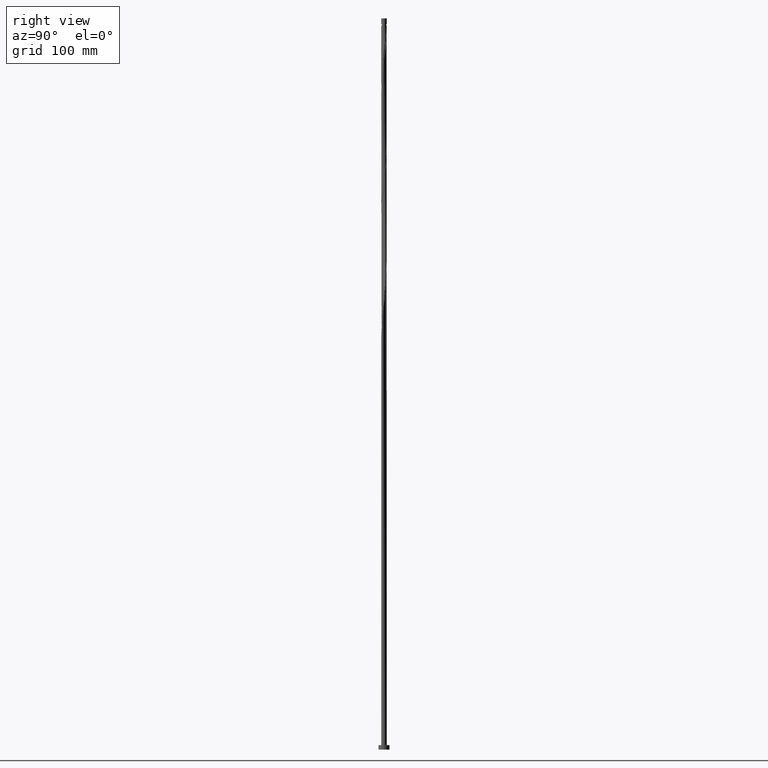
[diagram: clean part render]
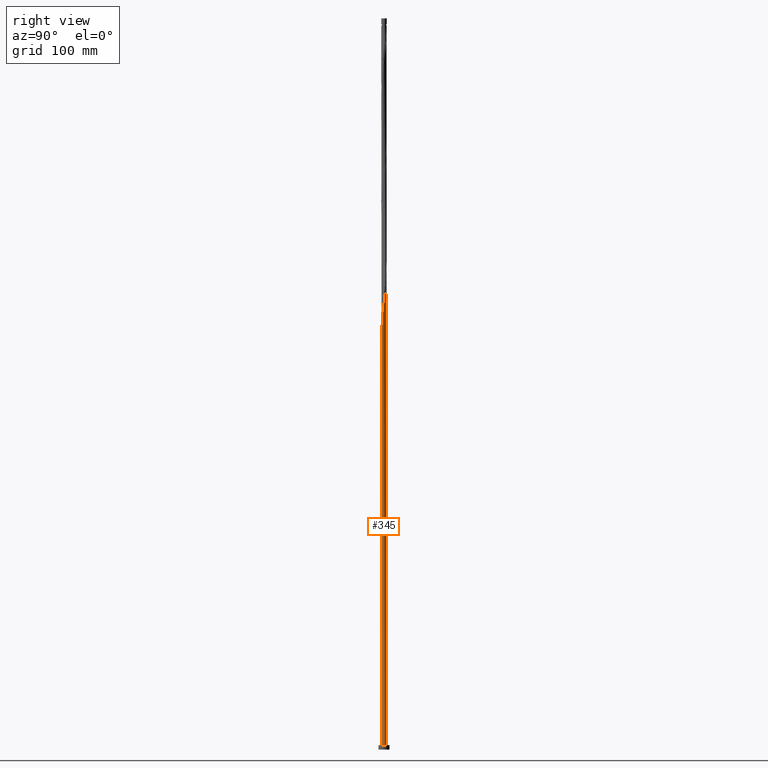
[diagram: same view with one face highlighted and labeled with its STEP entity id]
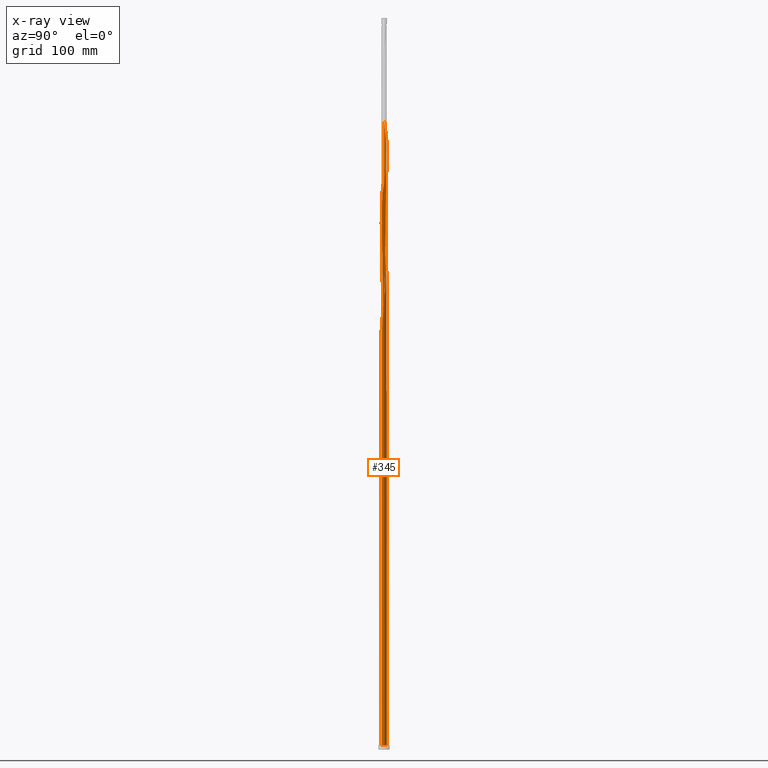
[diagram: x-ray of the same camera — body ghosted, the highlighted face saturated]
A machine part, right view. The second image highlights one B-rep face of the part: STEP entity #345.
The next image is the same camera in x-ray: the body ghosted, the highlighted face saturated — about 0% of this face is hidden behind the body in this view.
In plain terms, the highlighted cylindrical surface (bore or boss wall) has radius 3 mm, axis along (-0, -0, -1).
Its self-contained STEP definition (entity closure, byte-faithful):
#2 = CARTESIAN_POINT ( 'NONE',  ( 2.695961532796858684, -1.339248652669822848, 611.4615042186302389 ) ) ;
#14 = CARTESIAN_POINT ( 'NONE',  ( -1.519262203436358316, 2.586859554983558240, 399.1808024642443797 ) ) ;
#20 = CARTESIAN_POINT ( 'NONE',  ( 2.595725272805589956, 1.524469038097093776, 632.5141357975774099 ) ) ;
#32 = CARTESIAN_POINT ( 'NONE',  ( -0.3533771166587240664, 2.989468205788496036, 657.0755393063493557 ) ) ;
#34 = CARTESIAN_POINT ( 'NONE',  ( -3.000000000000004441, 1.134582154333421799E-15, 687.9113264038062425 ) ) ;
#45 = CARTESIAN_POINT ( 'NONE',  ( -0.1434927811088429761, -3.006859717673569410, 586.9001007098582932 ) ) ;
#68 = CARTESIAN_POINT ( 'NONE',  ( -1.758696304288136281, 2.430429449558913824, 409.7071182537179084 ) ) ;
#70 = CARTESIAN_POINT ( 'NONE',  ( 0.1049421677749414472, -2.998163961731032945, 455.3211533414372525 ) ) ;
#72 =( BOUNDED_CURVE ( )  B_SPLINE_CURVE ( 2, ( #796, #246, #777, #755, #2152, #593, #1475, #1819, #1257, #1636, #237, #1807, #68, #950, #1456, #1278, #81, #2175, #1118, #2133, #1980, #1971, #423 ),
 .UNSPECIFIED., .F., .T. ) 
 B_SPLINE_CURVE_WITH_KNOTS ( ( 3, 2, 2, 2, 2, 2, 2, 2, 2, 2, 2, 3 ),
 ( 0.9295295809515952135, 0.9342105263157894912, 0.9407894736842105088, 0.9473684210526315264, 0.9539473684210526550, 0.9605263157894736725, 0.9671052631578946901, 0.9736842105263158187, 0.9802631578947368363, 0.9868421052631578538, 0.9934210526315789824, 1.000000000000000000 ),
 .UNSPECIFIED. ) 
 CURVE ( )  GEOMETRIC_REPRESENTATION_ITEM ( )  RATIONAL_B_SPLINE_CURVE ( ( 0.9078162034606936936, 0.9068816855935004639, 0.9090909090910226364, 0.9059859027334492554, 0.9090909090910226364, 0.9059859027334492554, 0.9090909090910226364, 0.9059859027334492554, 0.9090909090910226364, 0.9059859027334492554, 0.9090909090910226364, 0.9059859027334492554, 0.9090909090910226364, 0.9059859027334492554, 0.9090909090910226364, 0.9059859027334492554, 0.9090909090910226364, 0.9059859027334492554, 0.9090909090910226364, 0.9059859027334492554, 0.9090909090910226364, 0.9059859027334492554, 0.9090909090910226364 ) ) 
 REPRESENTATION_ITEM ( '' )  );
#79 = CIRCLE ( 'NONE', #1016, 3.000000000000000444 ) ;
#81 = CARTESIAN_POINT ( 'NONE',  ( -0.8742461352996946378, 2.869789834624400182, 402.6895743940687566 ) ) ;
#83 = CARTESIAN_POINT ( 'NONE',  ( -3.000000000000003997, 4.112860309458654737E-15, 421.2446597371395001 ) ) ;
#95 = DIRECTION ( 'NONE',  ( 0.000000000000000000, 0.000000000000000000, 1.000000000000000000 ) ) ;
#112 = CARTESIAN_POINT ( 'NONE',  ( -2.811242320081163371, -1.076434929655762263, 429.0053638677530898 ) ) ;
#123 = CARTESIAN_POINT ( 'NONE',  ( 3.008439307223865544, 0.1053018269011311153, 488.6544866747705100 ) ) ;
#132 = CARTESIAN_POINT ( 'NONE',  ( 2.787793373740093283, -1.108245507697124710, 479.8825568502091414 ) ) ;
#134 = CARTESIAN_POINT ( 'NONE',  ( -2.984740227335920260, 0.3913071879240777595, 418.4790480782793338 ) ) ;
#143 = CARTESIAN_POINT ( 'NONE',  ( 2.567360290469878237, -1.551986191600444709, 476.3737849203847077 ) ) ;
#154 = CARTESIAN_POINT ( 'NONE',  ( 2.438759048142896901, -1.764723730531065016, 474.6193989554723203 ) ) ;
#164 = CARTESIAN_POINT ( 'NONE',  ( -2.880659162653936622, -0.8377367060228093631, 560.5843112361742442 ) ) ;
#177 = CARTESIAN_POINT ( 'NONE',  ( -3.000000000000003553, 0.07154200273550892497, 687.4050033853661716 ) ) ;
#185 = EDGE_CURVE ( 'NONE', #528, #1963, #1814, .T. ) ;
#192 = CARTESIAN_POINT ( 'NONE',  ( 0.6364485698655246715, 2.942231934758790413, 650.0579954467003745 ) ) ;
#205 = CARTESIAN_POINT ( 'NONE',  ( 1.960087430248509177, 2.284699718952170056, 639.5316796572267322 ) ) ;
#216 = CARTESIAN_POINT ( 'NONE',  ( 2.115033574025961371, -2.142061745314848498, 604.4439603589809167 ) ) ;
#228 = CARTESIAN_POINT ( 'NONE',  ( 1.304908909382080706, -2.712749210342452422, 597.4264164993318218 ) ) ;
#237 = CARTESIAN_POINT ( 'NONE',  ( -2.134745518443575740, 2.107809662062745115, 413.2158901835424558 ) ) ;
#246 = CARTESIAN_POINT ( 'NONE',  ( -3.000000000000000444, 0.1766959252602944008, 428.4979970245320828 ) ) ;
#248 = CARTESIAN_POINT ( 'NONE',  ( 0.3533771166587242885, -2.989468205788496036, 457.0755393063494694 ) ) ;
#256 = CARTESIAN_POINT ( 'NONE',  ( -3.000000000000004441, 4.112860309458654737E-15, 421.2446597371395001 ) ) ;
#259 = CARTESIAN_POINT ( 'NONE',  ( 0.8406078078692338362, -2.890531794211509187, 460.5843112361739031 ) ) ;
#268 = CARTESIAN_POINT ( 'NONE',  ( 0.000000000000000000, 0.000000000000000000, 392.1632586045951712 ) ) ;
#288 = CARTESIAN_POINT ( 'NONE',  ( -3.008439307223864656, -0.1053018269011328223, 555.3211533414373662 ) ) ;
#293 = DIRECTION ( 'NONE',  ( -0.000000000000000000, -0.000000000000000000, -1.000000000000000000 ) ) ;
#299 = CARTESIAN_POINT ( 'NONE',  ( -1.557305178327770712, -2.576159180165665585, 576.3737849203844235 ) ) ;
#308 = CARTESIAN_POINT ( 'NONE',  ( 2.811242320081164259, 1.076434929655760486, 495.6720305344196618 ) ) ;
#320 = CARTESIAN_POINT ( 'NONE',  ( -1.924324535758298316, 2.301515822469756056, 536.0229077274020710 ) ) ;
#330 = CARTESIAN_POINT ( 'NONE',  ( 2.979257656225287487, 0.3521701546454935605, 490.4088726396828974 ) ) ;
#343 = CARTESIAN_POINT ( 'NONE',  ( -1.334674439530821211, -2.686753457327842209, 578.1281708852968677 ) ) ;
#345 = ADVANCED_FACE ( 'NONE', ( #439 ), #619, .T. ) ;
#358 = CARTESIAN_POINT ( 'NONE',  ( -2.567360290469878237, 1.551986191600443155, 676.3737849203845371 ) ) ;
#372 = CARTESIAN_POINT ( 'NONE',  ( -0.3899706754871828940, -2.974545826216180355, 585.1457147449459626 ) ) ;
#382 = CARTESIAN_POINT ( 'NONE',  ( -1.304908909382081594, 2.712749210342452422, 664.0930831659982232 ) ) ;
#394 = CARTESIAN_POINT ( 'NONE',  ( -0.5969924622639792844, 2.940000000000003944, 658.8299252712616862 ) ) ;
#396 = LINE ( 'NONE', #1090, #1293 ) ;
#406 = CARTESIAN_POINT ( 'NONE',  ( -1.334674439530821211, -2.686753457327842209, 444.7948375519637239 ) ) ;
#415 = CARTESIAN_POINT ( 'NONE',  ( -2.950076005226710318, -0.5990384823898562416, 425.4965919379283150 ) ) ;
#423 = CARTESIAN_POINT ( 'NONE',  ( 0.5969924622639803946, 2.939999999999997726, 392.1632586045951143 ) ) ;
#425 = CARTESIAN_POINT ( 'NONE',  ( -3.000000000000000000, -3.187280130923517461E-15, 429.7485241387174142 ) ) ;
#439 = FACE_OUTER_BOUND ( 'NONE', #1306, .T. ) ;
#459 = CARTESIAN_POINT ( 'NONE',  ( -1.304908909382081594, 2.712749210342452422, 530.7597498326651930 ) ) ;
#466 = CIRCLE ( 'NONE', #1957, 3.000000000000000444 ) ;
#468 = CARTESIAN_POINT ( 'NONE',  ( 2.932182721009622739, -0.6342747753242535813, 483.3913287800336889 ) ) ;
#477 = CARTESIAN_POINT ( 'NONE',  ( 2.276896311084430469, -1.953392737922956757, 472.8650129905600465 ) ) ;
#488 = CARTESIAN_POINT ( 'NONE',  ( 2.996589767279892680, -0.1430026805114723021, 486.9001007098582363 ) ) ;
#501 = CARTESIAN_POINT ( 'NONE',  ( -2.996589767279892680, 0.1430026805114726629, 553.5667673765251493 ) ) ;
#515 = CARTESIAN_POINT ( 'NONE',  ( -2.932182721009622295, 0.6342747753242530262, 683.3913287800338594 ) ) ;
#518 = LINE ( 'NONE', #1849, #734 ) ;
#523 = CARTESIAN_POINT ( 'NONE',  ( 0.5969924622639798395, -2.940000000000003944, 592.1632586045950575 ) ) ;
#528 = VERTEX_POINT ( 'NONE', #759 ) ;
#534 = CARTESIAN_POINT ( 'NONE',  ( -2.695961532796858684, 1.339248652669821960, 411.4615042186300116 ) ) ;
#537 = CARTESIAN_POINT ( 'NONE',  ( 3.008439307223865544, 0.1053018269011311153, 621.9878200081038813 ) ) ;
#540 = ORIENTED_EDGE ( 'NONE', *, *, #851, .F. ) ;
#549 = CARTESIAN_POINT ( 'NONE',  ( 1.334674439530821433, 2.686753457327842209, 644.7948375519636102 ) ) ;
#552 = VERTEX_POINT ( 'NONE', #1438 ) ;
#561 = CARTESIAN_POINT ( 'NONE',  ( 0.1049421677749414472, -2.998163961731032945, 588.6544866747707374 ) ) ;
#593 = CARTESIAN_POINT ( 'NONE',  ( -2.811242320081158041, 1.076434929655760930, 421.9878200081039381 ) ) ;
#597 = CARTESIAN_POINT ( 'NONE',  ( -2.880659162653936622, -0.8377367060228093631, 427.2509779028407593 ) ) ;
#606 = CARTESIAN_POINT ( 'NONE',  ( -0.1434927811088429761, -3.006859717673569410, 453.5667673765248651 ) ) ;
#619 = CYLINDRICAL_SURFACE ( 'NONE', #866, 3.000000000000000444 ) ;
#628 = CARTESIAN_POINT ( 'NONE',  ( -2.811242320081163371, -1.076434929655762263, 562.3386972010864611 ) ) ;
#640 = CARTESIAN_POINT ( 'NONE',  ( -0.8406078078692347244, 2.890531794211509187, 527.2509779028406456 ) ) ;
#655 = CARTESIAN_POINT ( 'NONE',  ( -2.595725272805589068, -1.524469038097094220, 565.8474691309108948 ) ) ;
#667 = CARTESIAN_POINT ( 'NONE',  ( -0.1049421677749396986, 2.998163961731032945, 521.9878200081038813 ) ) ;
#680 = CARTESIAN_POINT ( 'NONE',  ( -1.072758358625658381, 2.801640502276981248, 529.0053638677529761 ) ) ;
#691 = CARTESIAN_POINT ( 'NONE',  ( 0.3533771166587242885, -2.989468205788496036, 590.4088726396826132 ) ) ;
#703 = CARTESIAN_POINT ( 'NONE',  ( -1.733615497490634594, 2.460969899624664059, 400.9351884291566535 ) ) ;
#706 = CARTESIAN_POINT ( 'NONE',  ( -0.8406078078692347244, 2.890531794211509187, 660.5843112361739031 ) ) ;
#715 = CARTESIAN_POINT ( 'NONE',  ( -2.438759048142897345, 1.764723730531063906, 407.9527322888055210 ) ) ;
#719 = CARTESIAN_POINT ( 'NONE',  ( -2.879625214683326107, 0.8772423627244274602, 681.6369428151213015 ) ) ;
#730 = CARTESIAN_POINT ( 'NONE',  ( 1.112043700733870155, 2.797347734490019278, 646.5492235168758270 ) ) ;
#734 = VECTOR ( 'NONE', #293, 1000.000000000000000 ) ;
#742 = CARTESIAN_POINT ( 'NONE',  ( 2.984740227335920260, -0.3913071879240780926, 618.4790480782791064 ) ) ;
#755 = CARTESIAN_POINT ( 'NONE',  ( -2.950076005226704989, 0.5990384823898561306, 425.4965919379284287 ) ) ;
#759 = CARTESIAN_POINT ( 'NONE',  ( -0.5969924622639793954, 2.940000000000003944, 392.1632586045951143 ) ) ;
#772 = AXIS2_PLACEMENT_3D ( 'NONE', #2166, #95, #1280 ) ;
#777 = CARTESIAN_POINT ( 'NONE',  ( -2.979257656225282602, 0.3521701546454948928, 427.2509779028406456 ) ) ;
#789 = CARTESIAN_POINT ( 'NONE',  ( -2.595725272805589068, -1.524469038097094220, 432.5141357975775236 ) ) ;
#796 = CARTESIAN_POINT ( 'NONE',  ( -3.000000000000000000, -3.187280130923517461E-15, 429.7485241387174142 ) ) ;
#808 = CARTESIAN_POINT ( 'NONE',  ( -2.309403606638651407, -1.930919605173326170, 436.0229077274020710 ) ) ;
#818 = CARTESIAN_POINT ( 'NONE',  ( -1.758696304288140499, -2.430429449558918265, 574.6193989554723203 ) ) ;
#829 = CARTESIAN_POINT ( 'NONE',  ( 1.960087430248509177, 2.284699718952170056, 506.1983463238933609 ) ) ;
#836 = CIRCLE ( 'NONE', #772, 3.000000000000000444 ) ;
#838 = CARTESIAN_POINT ( 'NONE',  ( 0.3899706754871832826, 2.974545826216180355, 518.4790480782792201 ) ) ;
#850 = CARTESIAN_POINT ( 'NONE',  ( 1.519262203436358316, -2.586859554983558240, 465.8474691309108948 ) ) ;
#851 = EDGE_CURVE ( 'NONE', #1538, #1718, #518, .T. ) ;
#855 = VERTEX_POINT ( 'NONE', #987 ) ;
#862 = CARTESIAN_POINT ( 'NONE',  ( -0.5969924622639792844, 2.940000000000003944, 525.4965919379285424 ) ) ;
#866 = AXIS2_PLACEMENT_3D ( 'NONE', #1143, #1304, #2005 ) ;
#874 = CARTESIAN_POINT ( 'NONE',  ( -1.304908909382081594, 2.712749210342452422, 397.4264164993319355 ) ) ;
#877 = CARTESIAN_POINT ( 'NONE',  ( 2.309403606638652295, 1.930919605173324838, 636.0229077274019573 ) ) ;
#887 = CARTESIAN_POINT ( 'NONE',  ( 1.758696304288141610, 2.430429449558916488, 641.2860656221389490 ) ) ;
#901 = CARTESIAN_POINT ( 'NONE',  ( 0.3899706754871832826, 2.974545826216180355, 651.8123814116127051 ) ) ;
#904 = ORIENTED_EDGE ( 'NONE', *, *, #961, .F. ) ;
#912 = CARTESIAN_POINT ( 'NONE',  ( 2.567360290469878237, -1.551986191600444709, 609.7071182537180221 ) ) ;
#923 = DIRECTION ( 'NONE',  ( 0.000000000000000000, 0.000000000000000000, 1.000000000000000000 ) ) ;
#944 = CARTESIAN_POINT ( 'NONE',  ( 0.5969924622639798395, -2.940000000000003944, 458.8299252712619136 ) ) ;
#950 = CARTESIAN_POINT ( 'NONE',  ( -1.557305178327768047, 2.576159180165662033, 407.9527322888055778 ) ) ;
#952 = CARTESIAN_POINT ( 'NONE',  ( 1.072758358625657937, -2.801640502276981248, 462.3386972010864042 ) ) ;
#961 = EDGE_CURVE ( 'NONE', #1963, #1405, #396, .T. ) ;
#966 = CARTESIAN_POINT ( 'NONE',  ( -2.996589767279892680, 0.1430026805114726629, 420.2334340431915507 ) ) ;
#977 = ORIENTED_EDGE ( 'NONE', *, *, #1786, .T. ) ;
#984 = CARTESIAN_POINT ( 'NONE',  ( 2.879625214683325662, -0.8772423627244294586, 481.6369428151213583 ) ) ;
#987 = CARTESIAN_POINT ( 'NONE',  ( 0.5969924622639803946, 2.939999999999997726, 392.1632586045951143 ) ) ;
#995 = CARTESIAN_POINT ( 'NONE',  ( -2.879625214683326107, 0.8772423627244274602, 548.3036094817879302 ) ) ;
#999 = CARTESIAN_POINT ( 'NONE',  ( -3.000000000000003997, 4.112860309458654737E-15, 421.2446597371395001 ) ) ;
#1007 = CARTESIAN_POINT ( 'NONE',  ( 1.758696304288141610, 2.430429449558916488, 507.9527322888057483 ) ) ;
#1016 = AXIS2_PLACEMENT_3D ( 'NONE', #1081, #923, #2099 ) ;
#1019 = CARTESIAN_POINT ( 'NONE',  ( -2.276896311084430025, 1.953392737922956313, 539.5316796572267322 ) ) ;
#1030 = CARTESIAN_POINT ( 'NONE',  ( 0.8742461352996989676, 2.869789834624405511, 514.9702761484546727 ) ) ;
#1035 = ORIENTED_EDGE ( 'NONE', *, *, #1883, .F. ) ;
#1042 = CARTESIAN_POINT ( 'NONE',  ( 2.950076005226710318, 0.5990384823898557975, 625.4965919379284287 ) ) ;
#1045 = DIRECTION ( 'NONE',  ( -0.000000000000000000, -0.000000000000000000, -1.000000000000000000 ) ) ;
#1046 = ORIENTED_EDGE ( 'NONE', *, *, #961, .T. ) ;
#1053 = CARTESIAN_POINT ( 'NONE',  ( -0.8742461352996971913, -2.869789834624405955, 581.6369428151216425 ) ) ;
#1060 = ORIENTED_EDGE ( 'NONE', *, *, #1860, .F. ) ;
#1068 = CARTESIAN_POINT ( 'NONE',  ( 1.733615497490634594, -2.460969899624664059, 600.9351884291563692 ) ) ;
#1079 = CARTESIAN_POINT ( 'NONE',  ( -1.519262203436358316, 2.586859554983558240, 665.8474691309107811 ) ) ;
#1081 = CARTESIAN_POINT ( 'NONE',  ( 0.000000000000000000, 0.000000000000000000, 5.000000000000000000 ) ) ;
#1088 = CARTESIAN_POINT ( 'NONE',  ( -1.733615497490634594, 2.460969899624664059, 667.6018550958232254 ) ) ;
#1090 = CARTESIAN_POINT ( 'NONE',  ( -3.000000000000000444, 0.000000000000000000, 800.0000000000000000 ) ) ;
#1104 = CARTESIAN_POINT ( 'NONE',  ( -1.924324535758298316, 2.301515822469756056, 402.6895743940688135 ) ) ;
#1111 = CARTESIAN_POINT ( 'NONE',  ( -2.979257656225287487, -0.3521701546454946152, 423.7422059730163255 ) ) ;
#1113 = CARTESIAN_POINT ( 'NONE',  ( -0.8406078078692347244, 2.890531794211509187, 393.9176445695073312 ) ) ;
#1118 = CARTESIAN_POINT ( 'NONE',  ( -0.3899706754871813952, 2.974545826216175470, 399.1808024642442092 ) ) ;
#1120 = CARTESIAN_POINT ( 'NONE',  ( -0.8742461352996971913, -2.869789834624405955, 448.3036094817882713 ) ) ;
#1139 = CARTESIAN_POINT ( 'NONE',  ( -2.703483796443376441, -1.300451983876428352, 430.7597498326654204 ) ) ;
#1143 = CARTESIAN_POINT ( 'NONE',  ( 0.000000000000000000, 0.000000000000000000, 800.0000000000000000 ) ) ;
#1145 = ORIENTED_EDGE ( 'NONE', *, *, #1212, .T. ) ;
#1151 = CARTESIAN_POINT ( 'NONE',  ( -1.960087430248508733, -2.284699718952170056, 572.8650129905598760 ) ) ;
#1161 = CARTESIAN_POINT ( 'NONE',  ( -2.787793373740093283, 1.108245507697124710, 546.5492235168758270 ) ) ;
#1165 = ORIENTED_EDGE ( 'NONE', *, *, #1596, .T. ) ;
#1170 = CARTESIAN_POINT ( 'NONE',  ( 2.695961532796858684, -1.339248652669822848, 478.1281708852969246 ) ) ;
#1178 = CARTESIAN_POINT ( 'NONE',  ( 2.452564439722120682, 1.727694321635210528, 500.9351884291565398 ) ) ;
#1188 = CARTESIAN_POINT ( 'NONE',  ( 2.880659162653936622, 0.8377367060228096962, 493.9176445695074449 ) ) ;
#1199 = CARTESIAN_POINT ( 'NONE',  ( 2.879625214683325662, -0.8772423627244294586, 614.9702761484545590 ) ) ;
#1211 = CARTESIAN_POINT ( 'NONE',  ( 2.276896311084430469, -1.953392737922956757, 606.1983463238934746 ) ) ;
#1212 = EDGE_CURVE ( 'NONE', #552, #1405, #79, .T. ) ;
#1221 = CARTESIAN_POINT ( 'NONE',  ( 2.811242320081164259, 1.076434929655760486, 629.0053638677530898 ) ) ;
#1234 = CARTESIAN_POINT ( 'NONE',  ( 0.8406078078692338362, -2.890531794211509187, 593.9176445695073880 ) ) ;
#1245 = CARTESIAN_POINT ( 'NONE',  ( 2.134745518443581069, 2.107809662062747336, 637.7772936923142879 ) ) ;
#1257 = CARTESIAN_POINT ( 'NONE',  ( -2.452564439722115797, 1.727694321635207864, 416.7246621133669464 ) ) ;
#1259 = CARTESIAN_POINT ( 'NONE',  ( -1.758696304288140499, -2.430429449558918265, 441.2860656221390627 ) ) ;
#1269 = DIRECTION ( 'NONE',  ( -1.000000000000000000, 0.000000000000000000, 0.000000000000000000 ) ) ;
#1278 = CARTESIAN_POINT ( 'NONE',  ( -1.112043700733867935, 2.797347734490014837, 404.4439603589810872 ) ) ;
#1280 = DIRECTION ( 'NONE',  ( 1.000000000000000000, 0.000000000000000000, 0.000000000000000000 ) ) ;
#1283 = CARTESIAN_POINT ( 'NONE',  ( -2.879625214683326107, 0.8772423627244274602, 414.9702761484547864 ) ) ;
#1293 = VECTOR ( 'NONE', #1045, 1000.000000000000000 ) ;
#1304 = DIRECTION ( 'NONE',  ( -0.000000000000000000, -0.000000000000000000, -1.000000000000000000 ) ) ;
#1306 = EDGE_LOOP ( 'NONE', ( #540, #1060, #1046, #977, #1145, #904, #1415, #1165, #1035 ) ) ;
#1315 = CARTESIAN_POINT ( 'NONE',  ( -2.703483796443376441, -1.300451983876428352, 564.0930831659986779 ) ) ;
#1323 = CARTESIAN_POINT ( 'NONE',  ( 0.6364485698655246715, 2.942231934758790413, 516.7246621133670033 ) ) ;
#1335 = CARTESIAN_POINT ( 'NONE',  ( -2.115033574025961371, 2.142061745314848054, 537.7772936923142879 ) ) ;
#1347 = CARTESIAN_POINT ( 'NONE',  ( 2.309403606638652295, 1.930919605173324838, 502.6895743940688135 ) ) ;
#1360 = CARTESIAN_POINT ( 'NONE',  ( -2.438759048142897345, 1.764723730531063906, 541.2860656221388354 ) ) ;
#1372 = CARTESIAN_POINT ( 'NONE',  ( -2.787793373740093283, 1.108245507697124710, 679.8825568502091983 ) ) ;
#1387 = CARTESIAN_POINT ( 'NONE',  ( 2.452564439722120682, 1.727694321635210528, 634.2685217624900815 ) ) ;
#1396 = CARTESIAN_POINT ( 'NONE',  ( -2.567360290469878237, 1.551986191600443155, 409.7071182537179084 ) ) ;
#1398 =( BOUNDED_CURVE ( )  B_SPLINE_CURVE ( 2, ( #83, #2154, #1111, #415, #597, #112, #1139, #789, #1832, #808, #1487, #1982, #1259, #1962, #406, #1468, #1120, #1796, #1809, #606, #70, #248, #944, #259, #952, #1638, #850, #2196, #1534, #1845, #477, #154, #143, #1170, #132, #984, #468, #1865, #488, #123, #330, #1496, #1188, #308, #1508, #2227, #1178, #1347, #1885, #829, #1007, #2035, #2217, #1691, #1030, #1323, #838, #1523, #667, #2045, #862, #640, #680, #459, #2023, #1875, #320, #1335, #1019, #1360, #2206, #1670, #1161, #995, #2058, #1702, #501, #288, #1713, #2187, #164, #628, #1315, #655, #1682, #2014, #1855, #1151, #818, #299, #343, #1761, #1053, #1575, #372, #45, #561, #691, #523, #1234, #1412, #228, #1564, #1068, #1925, #216, #1211, #2122, #912, #2, #1595, #1199, #2096, #742, #1750, #537, #1737, #1042, #2085, #1221, #2109, #20, #1387, #877, #1245, #205, #887, #1423, #549, #730, #1947, #192, #901, #1400, #1585, #32, #394, #706, #1936, #382, #1079, #1088, #1772, #1913, #1548, #2072, #358, #2237, #1372, #719, #515, #1899, #1723, #177, #1446 ),
 .UNSPECIFIED., .F., .T. ) 
 B_SPLINE_CURVE_WITH_KNOTS ( ( 3, 2, 2, 2, 2, 2, 2, 2, 2, 2, 2, 2, 2, 2, 2, 2, 2, 2, 2, 2, 2, 2, 2, 2, 2, 2, 2, 2, 2, 2, 2, 2, 2, 2, 2, 2, 2, 2, 2, 2, 2, 2, 2, 2, 2, 2, 2, 2, 2, 2, 2, 2, 2, 2, 2, 2, 2, 2, 2, 2, 2, 2, 2, 2, 2, 2, 2, 2, 2, 2, 2, 2, 2, 2, 2, 2, 2, 3 ),
 ( 0.05452958095159539387, 0.05921052631578949121, 0.06578947368421050879, 0.07236842105263152636, 0.07894736842105265495, 0.08552631578947367252, 0.09210526315789469010, 0.09868421052631581869, 0.1052631578947368363, 0.1118421052631578538, 0.1184210526315789824, 0.1250000000000000000, 0.1315789473684210176, 0.1381578947368421462, 0.1447368421052631637, 0.1513157894736841813, 0.1578947368421053099, 0.1644736842105263275, 0.1710526315789473450, 0.1776315789473684736, 0.1842105263157894912, 0.1907894736842105088, 0.1973684210526315264, 0.2039473684210526550, 0.2105263157894736725, 0.2171052631578946901, 0.2236842105263158187, 0.2302631578947368363, 0.2368421052631578538, 0.2434210526315789824, 0.2500000000000000000, 0.2565789473684210176, 0.2631578947368421462, 0.2697368421052631637, 0.2763157894736841813, 0.2828947368421053099, 0.2894736842105263275, 0.2960526315789473450, 0.3026315789473684736, 0.3092105263157894912, 0.3157894736842105088, 0.3223684210526315264, 0.3289473684210526550, 0.3355263157894736725, 0.3421052631578946901, 0.3486842105263158187, 0.3552631578947368363, 0.3618421052631578538, 0.3684210526315789824, 0.3750000000000000000, 0.3815789473684210176, 0.3881578947368421462, 0.3947368421052631637, 0.4013157894736841813, 0.4078947368421053099, 0.4144736842105263275, 0.4210526315789473450, 0.4276315789473684736, 0.4342105263157894912, 0.4407894736842105088, 0.4473684210526315264, 0.4539473684210526550, 0.4605263157894736725, 0.4671052631578946901, 0.4736842105263158187, 0.4802631578947368363, 0.4868421052631578538, 0.4934210526315789824, 0.5000000000000000000, 0.5065789473684210176, 0.5131578947368420351, 0.5197368421052631637, 0.5263157894736842923, 0.5328947368421053099, 0.5394736842105263275, 0.5460526315789473450, 0.5526315789473683626, 0.5545295809515952135 ),
 .UNSPECIFIED. ) 
 CURVE ( )  GEOMETRIC_REPRESENTATION_ITEM ( )  RATIONAL_B_SPLINE_CURVE ( ( 0.9078162034607002440, 0.9068816855935071253, 0.9090909090910290757, 0.9059859027334558057, 0.9090909090910290757, 0.9059859027334558057, 0.9090909090910290757, 0.9059859027334558057, 0.9090909090910290757, 0.9059859027334558057, 0.9090909090910290757, 0.9059859027334558057, 0.9090909090910290757, 0.9059859027334558057, 0.9090909090910290757, 0.9059859027334558057, 0.9090909090910290757, 0.9059859027334558057, 0.9090909090910290757, 0.9059859027334558057, 0.9090909090910290757, 0.9059859027334558057, 0.9090909090910290757, 0.9059859027334558057, 0.9090909090910290757, 0.9059859027334558057, 0.9090909090910290757, 0.9059859027334558057, 0.9090909090910290757, 0.9059859027334558057, 0.9090909090910290757, 0.9059859027334558057, 0.9090909090910290757, 0.9059859027334558057, 0.9090909090910290757, 0.9059859027334558057, 0.9090909090910290757, 0.9059859027334558057, 0.9090909090910290757, 0.9059859027334558057, 0.9090909090910290757, 0.9059859027334558057, 0.9090909090910290757, 0.9059859027334558057, 0.9090909090910290757, 0.9059859027334558057, 0.9090909090910290757, 0.9059859027334558057, 0.9090909090910290757, 0.9059859027334558057, 0.9090909090910290757, 0.9059859027334558057, 0.9090909090910290757, 0.9059859027334558057, 0.9090909090910290757, 0.9059859027334558057, 0.9090909090910290757, 0.9059859027334558057, 0.9090909090910290757, 0.9059859027334558057, 0.9090909090910290757, 0.9059859027334558057, 0.9090909090910290757, 0.9059859027334558057, 0.9090909090910290757, 0.9059859027334558057, 0.9090909090910290757, 0.9059859027334558057, 0.9090909090910290757, 0.9059859027334558057, 0.9090909090910290757, 0.9059859027334558057, 0.9090909090910290757, 0.9059859027334558057, 0.9090909090910290757, 0.9059859027334558057, 0.9090909090910290757, 0.9059859027334558057, 0.9090909090910290757, 0.9059859027334558057, 0.9090909090910290757, 0.9059859027334558057, 0.9090909090910290757, 0.9059859027334558057, 0.9090909090910290757, 0.9059859027334558057, 0.9090909090910290757, 0.9059859027334558057, 0.9090909090910290757, 0.9059859027334558057, 0.9090909090910290757, 0.9059859027334558057, 0.9090909090910290757, 0.9059859027334558057, 0.9090909090910290757, 0.9059859027334558057, 0.9090909090910290757, 0.9059859027334558057, 0.9090909090910290757, 0.9059859027334558057, 0.9090909090910290757, 0.9059859027334558057, 0.9090909090910290757, 0.9059859027334558057, 0.9090909090910290757, 0.9059859027334558057, 0.9090909090910290757, 0.9059859027334558057, 0.9090909090910290757, 0.9059859027334558057, 0.9090909090910290757, 0.9059859027334558057, 0.9090909090910290757, 0.9059859027334558057, 0.9090909090910290757, 0.9059859027334558057, 0.9090909090910290757, 0.9059859027334558057, 0.9090909090910290757, 0.9059859027334558057, 0.9090909090910290757, 0.9059859027334558057, 0.9090909090910290757, 0.9059859027334558057, 0.9090909090910290757, 0.9059859027334558057, 0.9090909090910290757, 0.9059859027334558057, 0.9090909090910290757, 0.9059859027334558057, 0.9090909090910290757, 0.9059859027334558057, 0.9090909090910290757, 0.9059859027334558057, 0.9090909090910290757, 0.9059859027334558057, 0.9090909090910290757, 0.9059859027334558057, 0.9090909090910290757, 0.9059859027334558057, 0.9090909090910290757, 0.9059859027334558057, 0.9090909090910290757, 0.9059859027334558057, 0.9090909090910290757, 0.9059859027334558057, 0.9090909090910290757, 0.9059859027334558057, 0.9090909090910290757, 0.9059859027334558057, 0.9090909090910290757, 0.9059859027334558057, 0.9090909090910290757, 0.9081951262309777562, 0.9078162034607002440 ) ) 
 REPRESENTATION_ITEM ( '' )  );
#1400 = CARTESIAN_POINT ( 'NONE',  ( 0.1434927811088420047, 3.006859717673569410, 653.5667673765248082 ) ) ;
#1405 = VERTEX_POINT ( 'NONE', #1916 ) ;
#1412 = CARTESIAN_POINT ( 'NONE',  ( 1.072758358625657937, -2.801640502276981248, 595.6720305344198323 ) ) ;
#1415 = ORIENTED_EDGE ( 'NONE', *, *, #185, .F. ) ;
#1423 = CARTESIAN_POINT ( 'NONE',  ( 1.557305178327772266, 2.576159180165665141, 643.0404515870512796 ) ) ;
#1438 = CARTESIAN_POINT ( 'NONE',  ( 3.000000000000000444, 0.000000000000000000, 5.000000000000000000 ) ) ;
#1446 = CARTESIAN_POINT ( 'NONE',  ( -3.000000000000003997, 1.134582154333421799E-15, 687.9113264038062425 ) ) ;
#1456 = CARTESIAN_POINT ( 'NONE',  ( -1.334674439530817658, 2.686753457327838213, 406.1983463238933041 ) ) ;
#1468 = CARTESIAN_POINT ( 'NONE',  ( -1.112043700733870155, -2.797347734490019278, 446.5492235168757702 ) ) ;
#1475 = CARTESIAN_POINT ( 'NONE',  ( -2.703483796443370668, 1.300451983876426576, 420.2334340431915507 ) ) ;
#1487 = CARTESIAN_POINT ( 'NONE',  ( -2.134745518443580181, -2.107809662062748224, 437.7772936923145153 ) ) ;
#1496 = CARTESIAN_POINT ( 'NONE',  ( 2.950076005226710318, 0.5990384823898557975, 492.1632586045951712 ) ) ;
#1508 = CARTESIAN_POINT ( 'NONE',  ( 2.703483796443377329, 1.300451983876427464, 497.4264164993319923 ) ) ;
#1523 = CARTESIAN_POINT ( 'NONE',  ( 0.1434927811088420047, 3.006859717673569410, 520.2334340431915507 ) ) ;
#1534 = CARTESIAN_POINT ( 'NONE',  ( 1.924324535758298316, -2.301515822469756056, 469.3562410607354423 ) ) ;
#1538 = VERTEX_POINT ( 'NONE', #34 ) ;
#1548 = CARTESIAN_POINT ( 'NONE',  ( -2.276896311084430025, 1.953392737922956313, 672.8650129905599897 ) ) ;
#1564 = CARTESIAN_POINT ( 'NONE',  ( 1.519262203436358316, -2.586859554983558240, 599.1808024642442660 ) ) ;
#1575 = CARTESIAN_POINT ( 'NONE',  ( -0.6364485698655244494, -2.942231934758790413, 583.3913287800337457 ) ) ;
#1585 = CARTESIAN_POINT ( 'NONE',  ( -0.1049421677749396986, 2.998163961731032945, 655.3211533414373662 ) ) ;
#1595 = CARTESIAN_POINT ( 'NONE',  ( 2.787793373740093283, -1.108245507697124710, 613.2158901835423421 ) ) ;
#1596 = EDGE_CURVE ( 'NONE', #528, #855, #466, .T. ) ;
#1636 = CARTESIAN_POINT ( 'NONE',  ( -2.309403606638647855, 1.930919605173323506, 414.9702761484547864 ) ) ;
#1638 = CARTESIAN_POINT ( 'NONE',  ( 1.304908909382080706, -2.712749210342452422, 464.0930831659985643 ) ) ;
#1662 = CARTESIAN_POINT ( 'NONE',  ( -3.000000000000003553, 0.07154200273550508082, 420.7383367186994292 ) ) ;
#1670 = CARTESIAN_POINT ( 'NONE',  ( -2.695961532796858684, 1.339248652669821960, 544.7948375519634965 ) ) ;
#1682 = CARTESIAN_POINT ( 'NONE',  ( -2.452564439722121570, -1.727694321635209640, 567.6018550958233391 ) ) ;
#1691 = CARTESIAN_POINT ( 'NONE',  ( 1.112043700733870155, 2.797347734490019278, 513.2158901835425695 ) ) ;
#1702 = CARTESIAN_POINT ( 'NONE',  ( -2.984740227335920260, 0.3913071879240777595, 551.8123814116128187 ) ) ;
#1713 = CARTESIAN_POINT ( 'NONE',  ( -2.979257656225287487, -0.3521701546454946152, 557.0755393063495831 ) ) ;
#1718 = VERTEX_POINT ( 'NONE', #425 ) ;
#1723 = CARTESIAN_POINT ( 'NONE',  ( -2.996589767279892680, 0.1430026805114726629, 686.9001007098582932 ) ) ;
#1737 = CARTESIAN_POINT ( 'NONE',  ( 2.979257656225287487, 0.3521701546454935605, 623.7422059730160981 ) ) ;
#1750 = CARTESIAN_POINT ( 'NONE',  ( 2.996589767279892680, -0.1430026805114723021, 620.2334340431916644 ) ) ;
#1761 = CARTESIAN_POINT ( 'NONE',  ( -1.112043700733870155, -2.797347734490019278, 579.8825568502093120 ) ) ;
#1772 = CARTESIAN_POINT ( 'NONE',  ( -1.924324535758298316, 2.301515822469756056, 669.3562410607355559 ) ) ;
#1785 = DIRECTION ( 'NONE',  ( 0.000000000000000000, -0.000000000000000000, -1.000000000000000000 ) ) ;
#1786 = EDGE_CURVE ( 'NONE', #1405, #552, #836, .T. ) ;
#1796 = CARTESIAN_POINT ( 'NONE',  ( -0.6364485698655244494, -2.942231934758790413, 450.0579954467003176 ) ) ;
#1807 = CARTESIAN_POINT ( 'NONE',  ( -1.960087430248504958, 2.284699718952166947, 411.4615042186301821 ) ) ;
#1809 = CARTESIAN_POINT ( 'NONE',  ( -0.3899706754871828940, -2.974545826216180355, 451.8123814116127619 ) ) ;
#1814 =( BOUNDED_CURVE ( )  B_SPLINE_CURVE ( 2, ( #2105, #1113, #1896, #874, #14, #703, #1104, #2082, #1907, #715, #1396, #534, #1921, #1283, #2157, #134, #966, #1662, #999 ),
 .UNSPECIFIED., .F., .T. ) 
 B_SPLINE_CURVE_WITH_KNOTS ( ( 3, 2, 2, 2, 2, 2, 2, 2, 2, 3 ),
 ( 0.000000000000000000, 0.006578947368421017572, 0.01315789473684214443, 0.01973684210526316374, 0.02631578947368418478, 0.03289473684210530990, 0.03947368421052632748, 0.04605263157894734505, 0.05263157894736848058, 0.05452958095159539387 ),
 .UNSPECIFIED. ) 
 CURVE ( )  GEOMETRIC_REPRESENTATION_ITEM ( )  RATIONAL_B_SPLINE_CURVE ( ( 0.9090909090910290757, 0.9059859027334558057, 0.9090909090910290757, 0.9059859027334558057, 0.9090909090910290757, 0.9059859027334558057, 0.9090909090910290757, 0.9059859027334558057, 0.9090909090910290757, 0.9059859027334558057, 0.9090909090910290757, 0.9059859027334558057, 0.9090909090910290757, 0.9059859027334558057, 0.9090909090910290757, 0.9059859027334558057, 0.9090909090910290757, 0.9081951262309777562, 0.9078162034607002440 ) ) 
 REPRESENTATION_ITEM ( '' )  );
#1819 = CARTESIAN_POINT ( 'NONE',  ( -2.595725272805583739, 1.524469038097092666, 418.4790480782792201 ) ) ;
#1832 = CARTESIAN_POINT ( 'NONE',  ( -2.452564439722121570, -1.727694321635209640, 434.2685217624898542 ) ) ;
#1845 = CARTESIAN_POINT ( 'NONE',  ( 2.115033574025961371, -2.142061745314848498, 471.1106270256477728 ) ) ;
#1849 = CARTESIAN_POINT ( 'NONE',  ( -3.000000000000000444, 0.000000000000000000, 800.0000000000000000 ) ) ;
#1855 = CARTESIAN_POINT ( 'NONE',  ( -2.134745518443580181, -2.107809662062748224, 571.1106270256476591 ) ) ;
#1860 = EDGE_CURVE ( 'NONE', #1963, #1538, #1398, .T. ) ;
#1865 = CARTESIAN_POINT ( 'NONE',  ( 2.984740227335920260, -0.3913071879240780926, 485.1457147449460763 ) ) ;
#1875 = CARTESIAN_POINT ( 'NONE',  ( -1.733615497490634594, 2.460969899624664059, 534.2685217624898542 ) ) ;
#1883 = EDGE_CURVE ( 'NONE', #1718, #855, #72, .T. ) ;
#1885 = CARTESIAN_POINT ( 'NONE',  ( 2.134745518443581069, 2.107809662062747336, 504.4439603589810872 ) ) ;
#1896 = CARTESIAN_POINT ( 'NONE',  ( -1.072758358625658381, 2.801640502276981248, 395.6720305344196049 ) ) ;
#1899 = CARTESIAN_POINT ( 'NONE',  ( -2.984740227335920260, 0.3913071879240777595, 685.1457147449457352 ) ) ;
#1907 = CARTESIAN_POINT ( 'NONE',  ( -2.276896311084430025, 1.953392737922956313, 406.1983463238933041 ) ) ;
#1913 = CARTESIAN_POINT ( 'NONE',  ( -2.115033574025961371, 2.142061745314848054, 671.1106270256477728 ) ) ;
#1916 = CARTESIAN_POINT ( 'NONE',  ( -3.000000000000000444, 0.000000000000000000, 5.000000000000000000 ) ) ;
#1921 = CARTESIAN_POINT ( 'NONE',  ( -2.787793373740093283, 1.108245507697124710, 413.2158901835425127 ) ) ;
#1925 = CARTESIAN_POINT ( 'NONE',  ( 1.924324535758298316, -2.301515822469756056, 602.6895743940690409 ) ) ;
#1936 = CARTESIAN_POINT ( 'NONE',  ( -1.072758358625658381, 2.801640502276981248, 662.3386972010865748 ) ) ;
#1947 = CARTESIAN_POINT ( 'NONE',  ( 0.8742461352996989676, 2.869789834624405511, 648.3036094817881576 ) ) ;
#1957 = AXIS2_PLACEMENT_3D ( 'NONE', #268, #1785, #1269 ) ;
#1962 = CARTESIAN_POINT ( 'NONE',  ( -1.557305178327770712, -2.576159180165665585, 443.0404515870512796 ) ) ;
#1963 = VERTEX_POINT ( 'NONE', #256 ) ;
#1971 = CARTESIAN_POINT ( 'NONE',  ( 0.3533771166587253987, 2.989468205788491595, 393.9176445695073880 ) ) ;
#1980 = CARTESIAN_POINT ( 'NONE',  ( 0.1049421677749421411, 2.998163961731026728, 395.6720305344195481 ) ) ;
#1982 = CARTESIAN_POINT ( 'NONE',  ( -1.960087430248508733, -2.284699718952170056, 439.5316796572266185 ) ) ;
#2005 = DIRECTION ( 'NONE',  ( -1.000000000000000000, 0.000000000000000000, 0.000000000000000000 ) ) ;
#2014 = CARTESIAN_POINT ( 'NONE',  ( -2.309403606638651407, -1.930919605173326170, 569.3562410607353286 ) ) ;
#2023 = CARTESIAN_POINT ( 'NONE',  ( -1.519262203436358316, 2.586859554983558240, 532.5141357975776373 ) ) ;
#2035 = CARTESIAN_POINT ( 'NONE',  ( 1.557305178327772266, 2.576159180165665141, 509.7071182537178515 ) ) ;
#2045 = CARTESIAN_POINT ( 'NONE',  ( -0.3533771166587240664, 2.989468205788496036, 523.7422059730160981 ) ) ;
#2058 = CARTESIAN_POINT ( 'NONE',  ( -2.932182721009622295, 0.6342747753242530262, 550.0579954467002608 ) ) ;
#2072 = CARTESIAN_POINT ( 'NONE',  ( -2.438759048142897345, 1.764723730531063906, 674.6193989554720929 ) ) ;
#2082 = CARTESIAN_POINT ( 'NONE',  ( -2.115033574025961371, 2.142061745314848054, 404.4439603589810872 ) ) ;
#2085 = CARTESIAN_POINT ( 'NONE',  ( 2.880659162653936622, 0.8377367060228096962, 627.2509779028408730 ) ) ;
#2096 = CARTESIAN_POINT ( 'NONE',  ( 2.932182721009622739, -0.6342747753242535813, 616.7246621133670033 ) ) ;
#2099 = DIRECTION ( 'NONE',  ( 1.000000000000000000, 0.000000000000000000, 0.000000000000000000 ) ) ;
#2105 = CARTESIAN_POINT ( 'NONE',  ( -0.5969924622639792844, 2.940000000000003944, 392.1632586045951143 ) ) ;
#2109 = CARTESIAN_POINT ( 'NONE',  ( 2.703483796443377329, 1.300451983876427464, 630.7597498326653067 ) ) ;
#2122 = CARTESIAN_POINT ( 'NONE',  ( 2.438759048142896901, -1.764723730531065016, 607.9527322888058052 ) ) ;
#2133 = CARTESIAN_POINT ( 'NONE',  ( -0.1434927811088410610, 3.006859717673564525, 397.4264164993319355 ) ) ;
#2152 = CARTESIAN_POINT ( 'NONE',  ( -2.880659162653931737, 0.8377367060228086970, 423.7422059730161550 ) ) ;
#2154 = CARTESIAN_POINT ( 'NONE',  ( -3.000000000000004885, -0.1766959252603005348, 422.4951868513248883 ) ) ;
#2157 = CARTESIAN_POINT ( 'NONE',  ( -2.932182721009622295, 0.6342747753242530262, 416.7246621133671169 ) ) ;
#2166 = CARTESIAN_POINT ( 'NONE',  ( 0.000000000000000000, 0.000000000000000000, 5.000000000000000000 ) ) ;
#2175 = CARTESIAN_POINT ( 'NONE',  ( -0.6364485698655215629, 2.942231934758785972, 400.9351884291565966 ) ) ;
#2187 = CARTESIAN_POINT ( 'NONE',  ( -2.950076005226710318, -0.5990384823898562416, 558.8299252712619136 ) ) ;
#2196 = CARTESIAN_POINT ( 'NONE',  ( 1.733615497490634594, -2.460969899624664059, 467.6018550958231117 ) ) ;
#2206 = CARTESIAN_POINT ( 'NONE',  ( -2.567360290469878237, 1.551986191600443155, 543.0404515870511659 ) ) ;
#2217 = CARTESIAN_POINT ( 'NONE',  ( 1.334674439530821433, 2.686753457327842209, 511.4615042186303526 ) ) ;
#2227 = CARTESIAN_POINT ( 'NONE',  ( 2.595725272805589956, 1.524469038097093776, 499.1808024642442660 ) ) ;
#2237 = CARTESIAN_POINT ( 'NONE',  ( -2.695961532796858684, 1.339248652669821960, 678.1281708852967540 ) ) ;